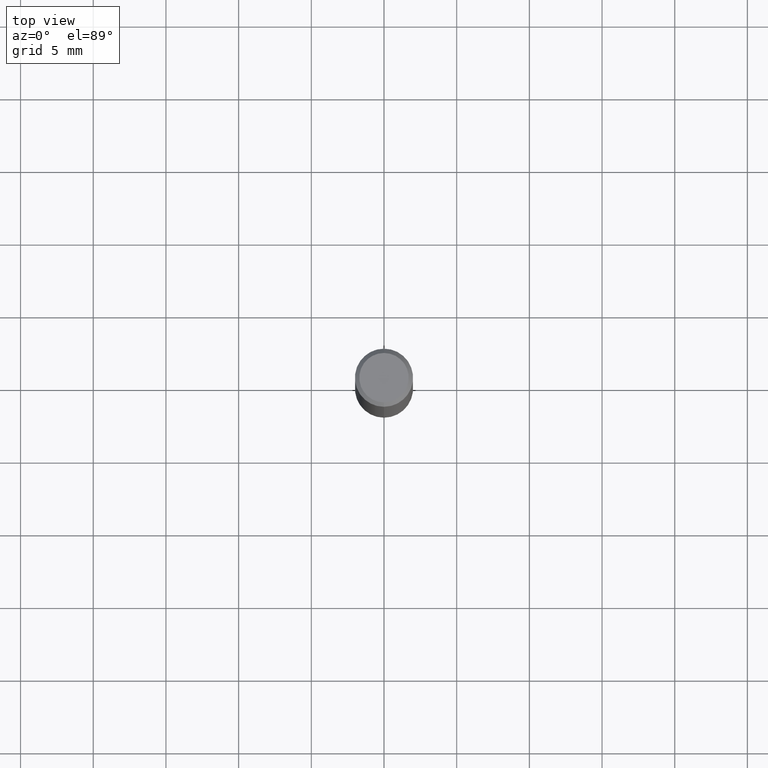
[diagram: clean part render]
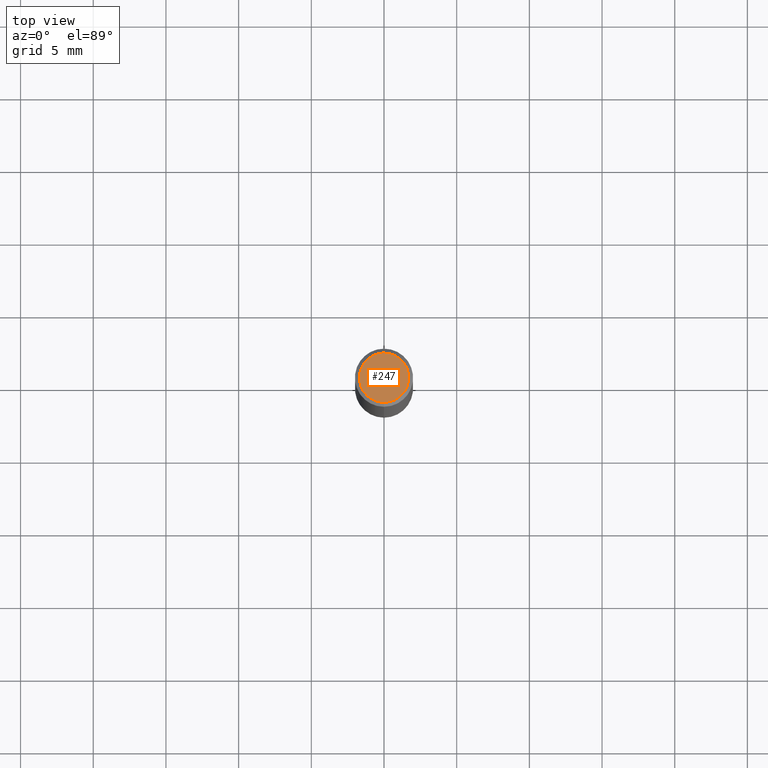
[diagram: same view with one face highlighted and labeled with its STEP entity id]
A machine part, top view. The second image highlights one B-rep face of the part: STEP entity #247.
In plain terms, the highlighted planar face has unit normal (-0, 0, 1).
Its self-contained STEP definition (entity closure, byte-faithful):
#167=VERTEX_POINT('',#406);
#169=VERTEX_POINT('',#408);
#247=ADVANCED_FACE('',(#496),#497,.T.);
#273=EDGE_CURVE('',#167,#169,#524,.T.);
#285=EDGE_CURVE('',#169,#167,#541,.T.);
#406=CARTESIAN_POINT('',(2.08183080149804E-016,-1.7,0.00999999999999801));
#408=CARTESIAN_POINT('',(0.0,1.7,0.00999999999999801));
#496=FACE_OUTER_BOUND('',#783,.T.);
#497=PLANE('',#784);
#524=CIRCLE('',#820,1.7);
#541=CIRCLE('',#840,1.7);
#783=EDGE_LOOP('',(#1106,#1107));
#784=AXIS2_PLACEMENT_3D('',#1108,#1109,#1110);
#820=AXIS2_PLACEMENT_3D('',#1137,#1138,#1139);
#840=AXIS2_PLACEMENT_3D('',#1170,#1171,#1172);
#1106=ORIENTED_EDGE('',*,*,#285,.F.);
#1107=ORIENTED_EDGE('',*,*,#273,.F.);
#1108=CARTESIAN_POINT('',(0.0,0.85,0.00999999999999801));
#1109=DIRECTION('',(-0.0,0.0,1.0));
#1110=DIRECTION('',(0.0,-1.0,0.0));
#1137=CARTESIAN_POINT('',(0.0,0.0,0.00999999999999801));
#1138=DIRECTION('',(0.0,0.0,-1.0));
#1139=DIRECTION('',(0.0,1.0,0.0));
#1170=CARTESIAN_POINT('',(0.0,0.0,0.00999999999999801));
#1171=DIRECTION('',(0.0,0.0,-1.0));
#1172=DIRECTION('',(0.0,1.0,0.0));